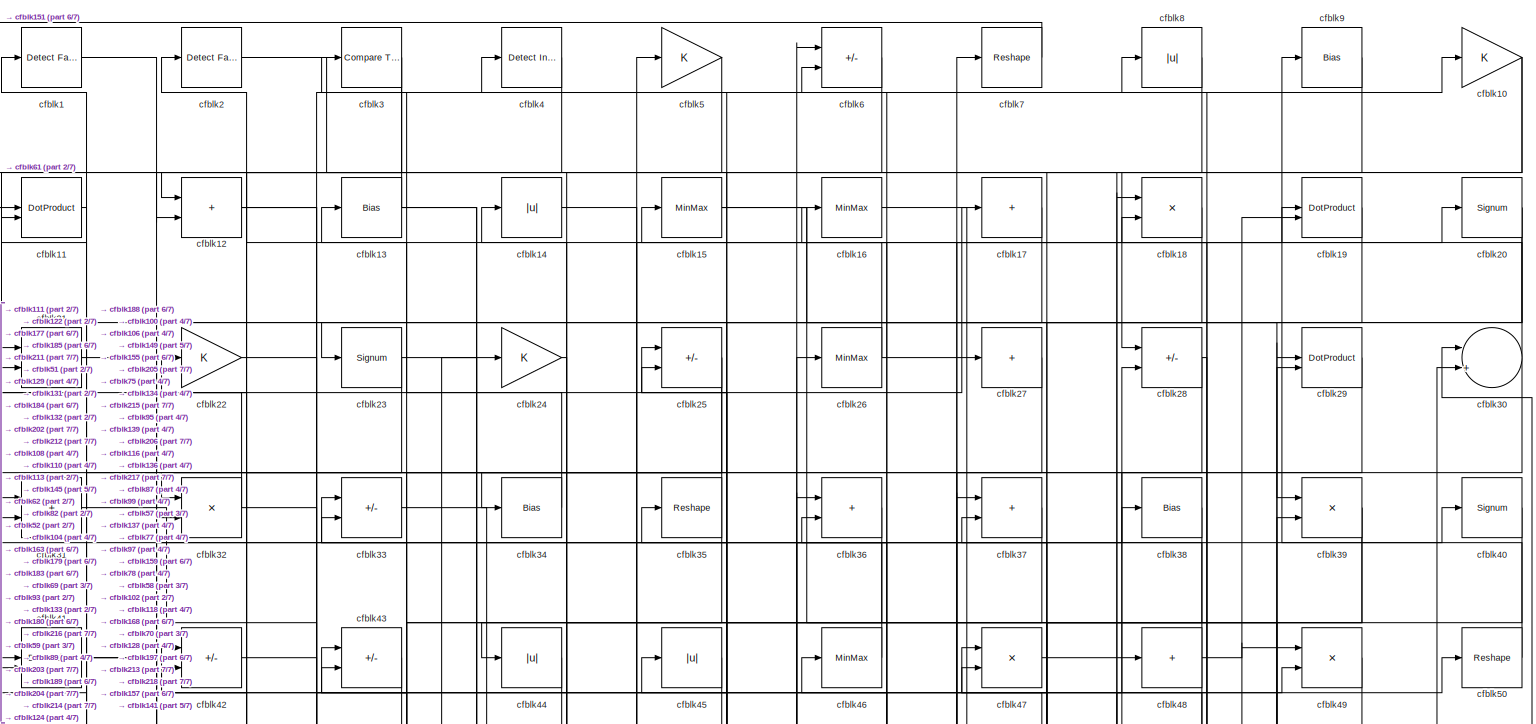
[diagram: root canvas - part 1/7, full width, top band]
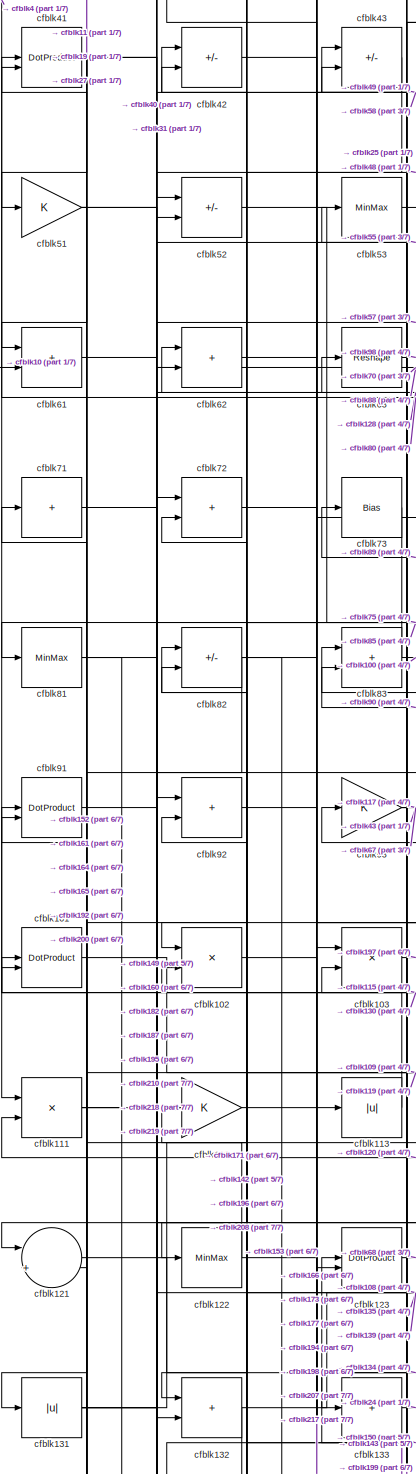
[diagram: root canvas - part 2/7, middle left region]
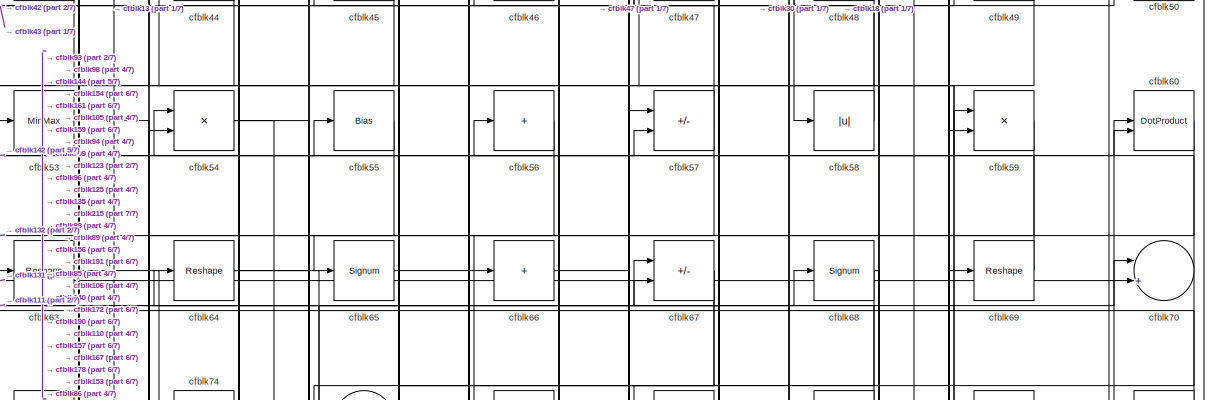
[diagram: root canvas - part 3/7, full width, top band]
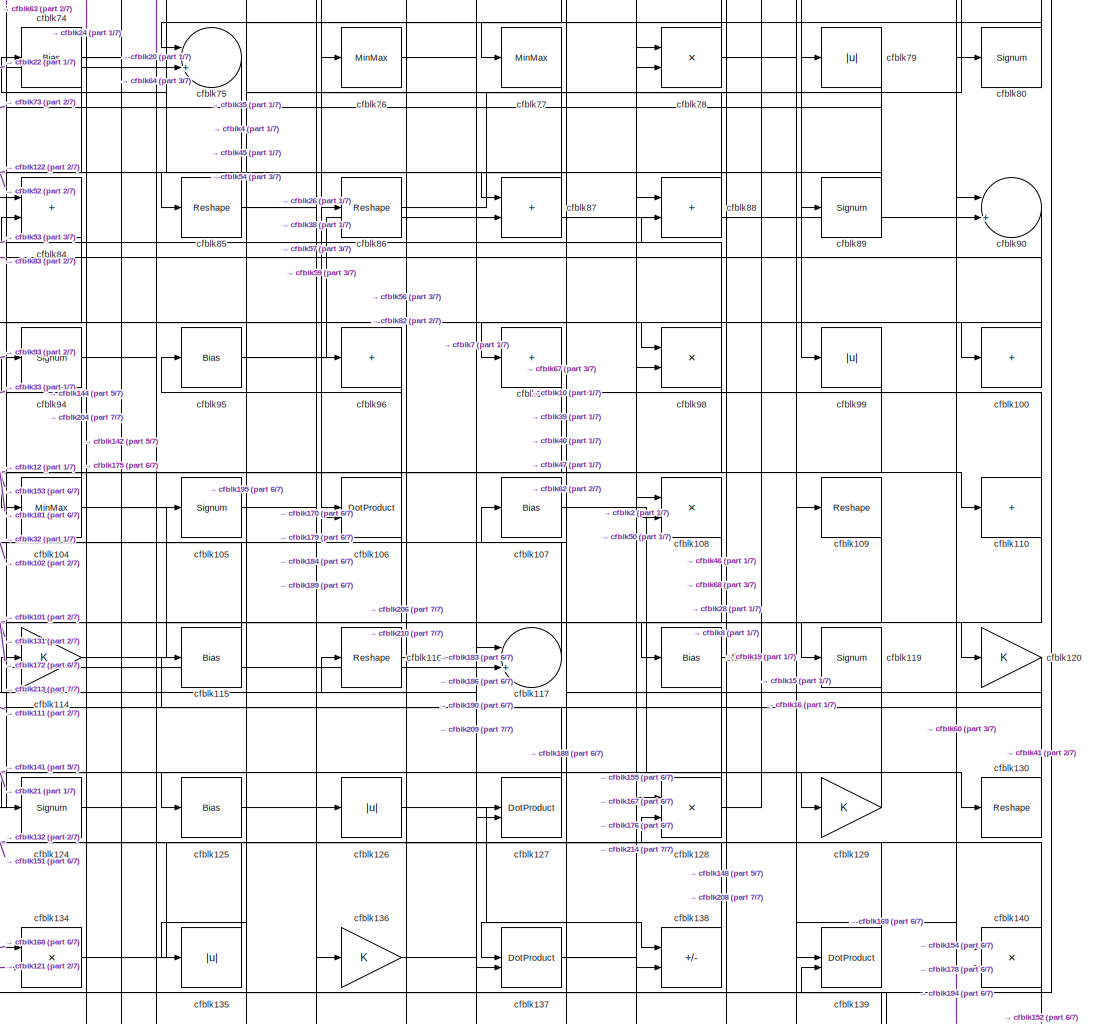
[diagram: root canvas - part 4/7, central region]
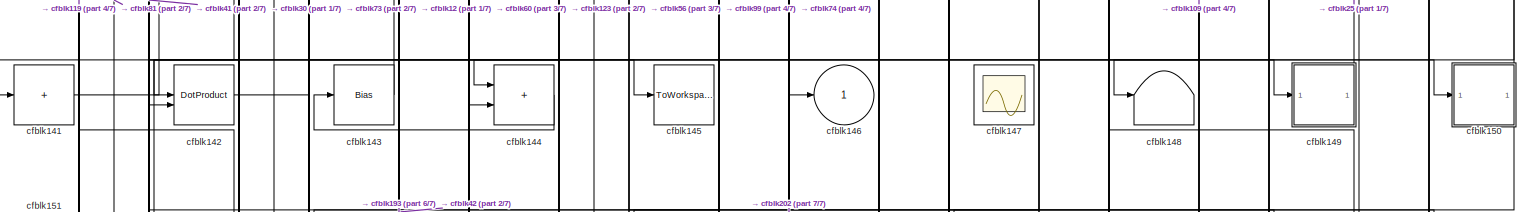
[diagram: root canvas - part 5/7, full width, middle band]
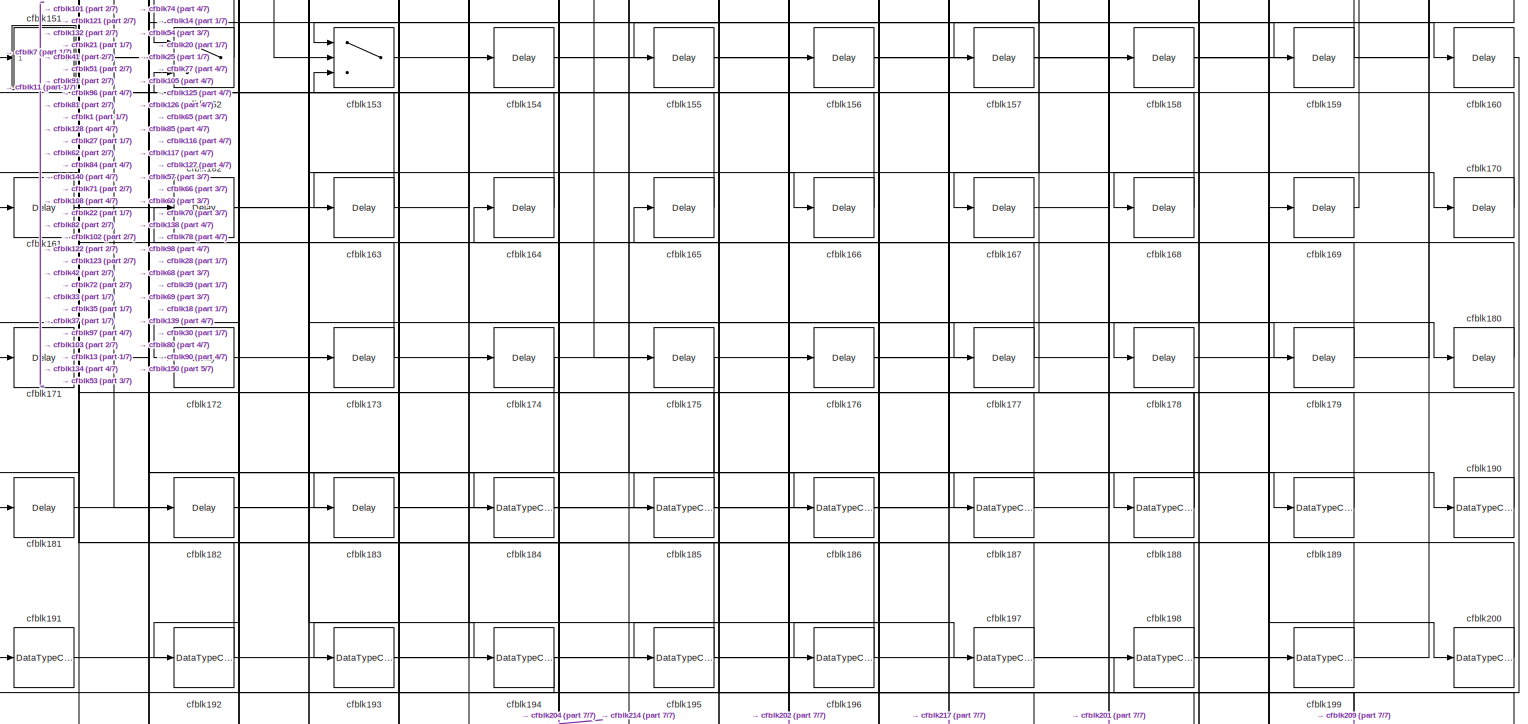
[diagram: root canvas - part 6/7, full width, bottom band]
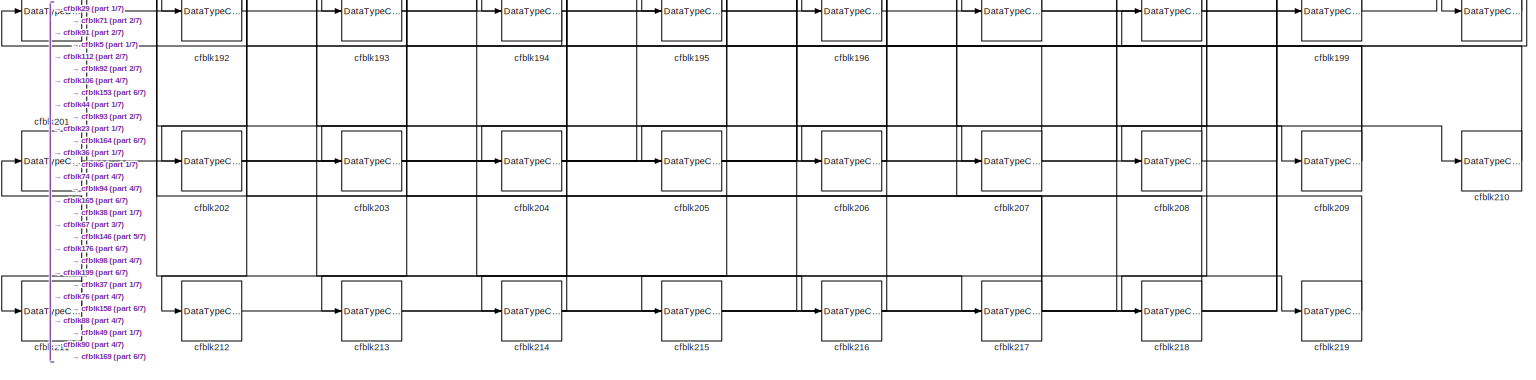
[diagram: root canvas - part 7/7, full width, bottom band]
MODEL slx_62af67a129e2
KIND model
CONFIG AbsTol = auto
CONFIG EnableMultiTasking = off
CONFIG FixedStep = auto
CONFIG MaxStep = auto
CONFIG MinStep = auto
CONFIG RelTol = 1e-3
CONFIG SampleTimeConstraint = Unconstrained
CONFIG SolverName = VariableStepAuto
CONFIG StartTime = 0.0
CONFIG StopTime = 10.0
BLOCK [Reference] cfblk1  REF=hdlsllib/Logic and Bit
Operations/Detect Fall
Negative
  SourceBlock = hdlsllib/Logic and Bit\nOperations/Detect Fall\nNegative
  SourceType = Detect Fall Negative
BLOCK [Gain] cfblk10
BLOCK [Sum] cfblk100
  IconShape = rectangular
  Inputs = +
BLOCK [DotProduct] cfblk101
  OutDataTypeStr = Inherit: Inherit via internal rule
BLOCK [Product] cfblk102
  Inputs = */
  RndMeth = Zero
  SaturateOnIntegerOverflow = on
BLOCK [Product] cfblk103
  Inputs = */
  RndMeth = Zero
  SaturateOnIntegerOverflow = on
BLOCK [MinMax] cfblk104
BLOCK [Signum] cfblk105
BLOCK [DotProduct] cfblk106
  OutDataTypeStr = Inherit: Inherit via internal rule
BLOCK [Bias] cfblk107
  Bias = 0.0
  SaturateOnIntegerOverflow = off
BLOCK [Product] cfblk108
  Inputs = */
  RndMeth = Zero
  SaturateOnIntegerOverflow = on
BLOCK [Reshape] cfblk109
BLOCK [DotProduct] cfblk11
  OutDataTypeStr = Inherit: Inherit via internal rule
BLOCK [Sum] cfblk110
  IconShape = rectangular
  Inputs = +
BLOCK [Product] cfblk111
  Inputs = */
  RndMeth = Zero
  SaturateOnIntegerOverflow = on
BLOCK [Gain] cfblk112
BLOCK [Abs] cfblk113
  SaturateOnIntegerOverflow = off
BLOCK [Gain] cfblk114
BLOCK [Bias] cfblk115
  Bias = 0.0
  SaturateOnIntegerOverflow = off
BLOCK [Reshape] cfblk116
BLOCK [Sum] cfblk117
  Inputs = |++
BLOCK [Bias] cfblk118
  Bias = 0.0
  SaturateOnIntegerOverflow = off
BLOCK [Signum] cfblk119
BLOCK [Sum] cfblk12
  IconShape = rectangular
BLOCK [Gain] cfblk120
BLOCK [Sum] cfblk121
  Inputs = |++
BLOCK [MinMax] cfblk122
BLOCK [DotProduct] cfblk123
  OutDataTypeStr = Inherit: Inherit via internal rule
BLOCK [Signum] cfblk124
BLOCK [Bias] cfblk125
  Bias = 0.0
  SaturateOnIntegerOverflow = off
BLOCK [Abs] cfblk126
  SaturateOnIntegerOverflow = off
BLOCK [DotProduct] cfblk127
  OutDataTypeStr = Inherit: Inherit via internal rule
BLOCK [Product] cfblk128
  Inputs = */
  RndMeth = Zero
  SaturateOnIntegerOverflow = on
BLOCK [Gain] cfblk129
BLOCK [Bias] cfblk13
  Bias = 0.0
  SaturateOnIntegerOverflow = off
BLOCK [Reshape] cfblk130
BLOCK [Abs] cfblk131
  SaturateOnIntegerOverflow = off
BLOCK [Sum] cfblk132
  IconShape = rectangular
BLOCK [Sum] cfblk133
  IconShape = rectangular
  Inputs = +
BLOCK [Product] cfblk134
  Inputs = */
  RndMeth = Zero
  SaturateOnIntegerOverflow = on
BLOCK [Abs] cfblk135
  SaturateOnIntegerOverflow = off
BLOCK [Gain] cfblk136
BLOCK [DotProduct] cfblk137
  OutDataTypeStr = Inherit: Inherit via internal rule
BLOCK [Sum] cfblk138
  IconShape = rectangular
  Inputs = +-
BLOCK [DotProduct] cfblk139
  OutDataTypeStr = Inherit: Inherit via internal rule
BLOCK [Abs] cfblk14
  SaturateOnIntegerOverflow = off
BLOCK [Product] cfblk140
  Inputs = */
  RndMeth = Zero
  SaturateOnIntegerOverflow = on
BLOCK [Sum] cfblk141
  IconShape = rectangular
  Inputs = +
BLOCK [DotProduct] cfblk142
  OutDataTypeStr = Inherit: Inherit via internal rule
BLOCK [Bias] cfblk143
  Bias = 0.0
  SaturateOnIntegerOverflow = off
BLOCK [Sum] cfblk144
  IconShape = rectangular
BLOCK [ToWorkspace] cfblk145
  MaxDataPoints = inf
  SampleTime = -1
  SaveFormat = Timeseries
  VariableName = simout
BLOCK [Outport] cfblk146
  VectorParamsAs1DForOutWhenUnconnected = off
BLOCK [Scope] cfblk147
  Floating = on
  NumInputPorts = 1
  ScopeSpecificationString = Simulink.scopes.TimeScopeBlockCfg('CurrentConfiguration', extmgr.ConfigurationSet(extmgr.Configuration('Core','General UI',true,'FigureColor',[0.156862745098039 0.156862745098039 0.156862745098039]),extmgr.Configuration('Core','Source UI',true),extmgr.Configuration('Sources','WiredSimulink',true,'DataLoggingVariableName','ScopeData1','DataLoggingSaveFormat','StructureWithTime','DataLoggingLimitDat...<+2713ch>
BLOCK [Terminator] cfblk148
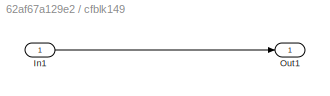
BLOCK [SubSystem] cfblk149
  LibrarySourceBlock = hdlsllib/Ports &\nSubsystems/Subsystem
BLOCK [Inport] cfblk149/In1
BLOCK [Outport] cfblk149/Out1
BLOCK [MinMax] cfblk15
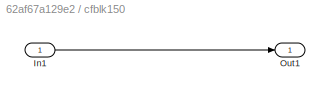
BLOCK [SubSystem] cfblk150
  LibrarySourceBlock = hdlsllib/Ports &\nSubsystems/Subsystem
BLOCK [Inport] cfblk150/In1
BLOCK [Outport] cfblk150/Out1
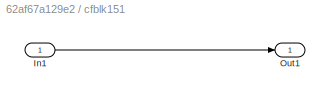
BLOCK [SubSystem] cfblk151
  LibrarySourceBlock = hdlsllib/Ports &\nSubsystems/Subsystem
BLOCK [Inport] cfblk151/In1
BLOCK [Outport] cfblk151/Out1
BLOCK [Switch] cfblk152
  InputSameDT = off
  SaturateOnIntegerOverflow = off
BLOCK [Switch] cfblk153
  InputSameDT = off
  SaturateOnIntegerOverflow = off
BLOCK [Delay] cfblk154
  InputPortMap = u0
  SampleTime = 1
BLOCK [Delay] cfblk155
  InputPortMap = u0
  SampleTime = 1
BLOCK [Delay] cfblk156
  InputPortMap = u0
  SampleTime = 1
BLOCK [Delay] cfblk157
  InputPortMap = u0
  SampleTime = 1
BLOCK [Delay] cfblk158
  InputPortMap = u0
  SampleTime = 1
BLOCK [Delay] cfblk159
  InputPortMap = u0
  SampleTime = 1
BLOCK [MinMax] cfblk16
BLOCK [Delay] cfblk160
  InputPortMap = u0
  SampleTime = 1
BLOCK [Delay] cfblk161
  InputPortMap = u0
  SampleTime = 1
BLOCK [Delay] cfblk162
  InputPortMap = u0
  SampleTime = 1
BLOCK [Delay] cfblk163
  InputPortMap = u0
  SampleTime = 1
BLOCK [Delay] cfblk164
  InputPortMap = u0
  SampleTime = 1
BLOCK [Delay] cfblk165
  InputPortMap = u0
  SampleTime = 1
BLOCK [Delay] cfblk166
  InputPortMap = u0
  SampleTime = 1
BLOCK [Delay] cfblk167
  InputPortMap = u0
  SampleTime = 1
BLOCK [Delay] cfblk168
  InputPortMap = u0
  SampleTime = 1
BLOCK [Delay] cfblk169
  InputPortMap = u0
  SampleTime = 1
BLOCK [Sum] cfblk17
  IconShape = rectangular
  Inputs = +
BLOCK [Delay] cfblk170
  InputPortMap = u0
  SampleTime = 1
BLOCK [Delay] cfblk171
  InputPortMap = u0
  SampleTime = 1
BLOCK [Delay] cfblk172
  InputPortMap = u0
  SampleTime = 1
BLOCK [Delay] cfblk173
  InputPortMap = u0
  SampleTime = 1
BLOCK [Delay] cfblk174
  InputPortMap = u0
  SampleTime = 1
BLOCK [Delay] cfblk175
  InputPortMap = u0
  SampleTime = 1
BLOCK [Delay] cfblk176
  InputPortMap = u0
  SampleTime = 1
BLOCK [Delay] cfblk177
  InputPortMap = u0
  SampleTime = 1
BLOCK [Delay] cfblk178
  InputPortMap = u0
  SampleTime = 1
BLOCK [Delay] cfblk179
  InputPortMap = u0
  SampleTime = 1
BLOCK [Product] cfblk18
  Inputs = */
  RndMeth = Zero
  SaturateOnIntegerOverflow = on
BLOCK [Delay] cfblk180
  InputPortMap = u0
  SampleTime = 1
BLOCK [Delay] cfblk181
  InputPortMap = u0
  SampleTime = 1
BLOCK [Delay] cfblk182
  InputPortMap = u0
  SampleTime = 1
BLOCK [Delay] cfblk183
  InputPortMap = u0
  SampleTime = 1
BLOCK [DataTypeConversion] cfblk184
  OutDataTypeStr = uint8
  RndMeth = Floor
  SaturateOnIntegerOverflow = off
BLOCK [DataTypeConversion] cfblk185
  OutDataTypeStr = uint8
  RndMeth = Floor
  SaturateOnIntegerOverflow = off
BLOCK [DataTypeConversion] cfblk186
  OutDataTypeStr = uint8
  RndMeth = Floor
  SaturateOnIntegerOverflow = off
BLOCK [DataTypeConversion] cfblk187
  OutDataTypeStr = uint8
  RndMeth = Floor
  SaturateOnIntegerOverflow = off
BLOCK [DataTypeConversion] cfblk188
  RndMeth = Floor
  SaturateOnIntegerOverflow = off
BLOCK [DataTypeConversion] cfblk189
  OutDataTypeStr = uint8
  RndMeth = Floor
  SaturateOnIntegerOverflow = off
BLOCK [DotProduct] cfblk19
  OutDataTypeStr = Inherit: Inherit via internal rule
BLOCK [DataTypeConversion] cfblk190
  OutDataTypeStr = uint8
  RndMeth = Floor
  SaturateOnIntegerOverflow = off
BLOCK [DataTypeConversion] cfblk191
  OutDataTypeStr = uint8
  RndMeth = Floor
  SaturateOnIntegerOverflow = off
BLOCK [DataTypeConversion] cfblk192
  OutDataTypeStr = uint8
  RndMeth = Floor
  SaturateOnIntegerOverflow = off
BLOCK [DataTypeConversion] cfblk193
  OutDataTypeStr = uint8
  RndMeth = Floor
  SaturateOnIntegerOverflow = off
BLOCK [DataTypeConversion] cfblk194
  RndMeth = Floor
  SaturateOnIntegerOverflow = off
BLOCK [DataTypeConversion] cfblk195
  OutDataTypeStr = uint8
  RndMeth = Floor
  SaturateOnIntegerOverflow = off
BLOCK [DataTypeConversion] cfblk196
  OutDataTypeStr = uint8
  RndMeth = Floor
  SaturateOnIntegerOverflow = off
BLOCK [DataTypeConversion] cfblk197
  RndMeth = Floor
  SaturateOnIntegerOverflow = off
BLOCK [DataTypeConversion] cfblk198
  OutDataTypeStr = uint8
  RndMeth = Floor
  SaturateOnIntegerOverflow = off
BLOCK [DataTypeConversion] cfblk199
  OutDataTypeStr = uint8
  RndMeth = Floor
  SaturateOnIntegerOverflow = off
BLOCK [Reference] cfblk2  REF=hdlsllib/Logic and Bit
Operations/Detect Fall
Nonpositive
  SourceBlock = hdlsllib/Logic and Bit\nOperations/Detect Fall\nNonpositive
  SourceType = Detect Fall Nonpositive
BLOCK [Signum] cfblk20
BLOCK [DataTypeConversion] cfblk200
  OutDataTypeStr = uint8
  RndMeth = Floor
  SaturateOnIntegerOverflow = off
BLOCK [DataTypeConversion] cfblk201
  OutDataTypeStr = uint8
  RndMeth = Floor
  SaturateOnIntegerOverflow = off
BLOCK [DataTypeConversion] cfblk202
  RndMeth = Floor
  SaturateOnIntegerOverflow = off
BLOCK [DataTypeConversion] cfblk203
  OutDataTypeStr = uint8
  RndMeth = Floor
  SaturateOnIntegerOverflow = off
BLOCK [DataTypeConversion] cfblk204
  RndMeth = Floor
  SaturateOnIntegerOverflow = off
BLOCK [DataTypeConversion] cfblk205
  OutDataTypeStr = uint8
  RndMeth = Floor
  SaturateOnIntegerOverflow = off
BLOCK [DataTypeConversion] cfblk206
  OutDataTypeStr = uint8
  RndMeth = Floor
  SaturateOnIntegerOverflow = off
BLOCK [DataTypeConversion] cfblk207
  OutDataTypeStr = uint8
  RndMeth = Floor
  SaturateOnIntegerOverflow = off
BLOCK [DataTypeConversion] cfblk208
  OutDataTypeStr = uint8
  RndMeth = Floor
  SaturateOnIntegerOverflow = off
BLOCK [DataTypeConversion] cfblk209
  RndMeth = Floor
  SaturateOnIntegerOverflow = off
BLOCK [Sum] cfblk21
  IconShape = rectangular
BLOCK [DataTypeConversion] cfblk210
  OutDataTypeStr = uint8
  RndMeth = Floor
  SaturateOnIntegerOverflow = off
BLOCK [DataTypeConversion] cfblk211
  OutDataTypeStr = uint8
  RndMeth = Floor
  SaturateOnIntegerOverflow = off
BLOCK [DataTypeConversion] cfblk212
  OutDataTypeStr = uint8
  RndMeth = Floor
  SaturateOnIntegerOverflow = off
BLOCK [DataTypeConversion] cfblk213
  OutDataTypeStr = uint8
  RndMeth = Floor
  SaturateOnIntegerOverflow = off
BLOCK [DataTypeConversion] cfblk214
  RndMeth = Floor
  SaturateOnIntegerOverflow = off
BLOCK [DataTypeConversion] cfblk215
  OutDataTypeStr = uint8
  RndMeth = Floor
  SaturateOnIntegerOverflow = off
BLOCK [DataTypeConversion] cfblk216
  OutDataTypeStr = uint8
  RndMeth = Floor
  SaturateOnIntegerOverflow = off
BLOCK [DataTypeConversion] cfblk217
  RndMeth = Floor
  SaturateOnIntegerOverflow = off
BLOCK [DataTypeConversion] cfblk218
  OutDataTypeStr = uint8
  RndMeth = Floor
  SaturateOnIntegerOverflow = off
BLOCK [DataTypeConversion] cfblk219
  OutDataTypeStr = uint8
  RndMeth = Floor
  SaturateOnIntegerOverflow = off
BLOCK [Gain] cfblk22
BLOCK [Signum] cfblk23
BLOCK [Gain] cfblk24
BLOCK [Sum] cfblk25
  IconShape = rectangular
  Inputs = +-
BLOCK [MinMax] cfblk26
BLOCK [Sum] cfblk27
  IconShape = rectangular
  Inputs = +
BLOCK [Sum] cfblk28
  IconShape = rectangular
  Inputs = +-
BLOCK [DotProduct] cfblk29
  OutDataTypeStr = Inherit: Inherit via internal rule
BLOCK [Reference] cfblk3  REF=hdlsllib/Logic and Bit
Operations/Compare
To Constant
  SourceBlock = hdlsllib/Logic and Bit\nOperations/Compare\nTo Constant
  SourceType = Compare To Constant
BLOCK [Sum] cfblk30
  Inputs = |++
BLOCK [Sum] cfblk31
  IconShape = rectangular
BLOCK [Product] cfblk32
  Inputs = */
  RndMeth = Zero
  SaturateOnIntegerOverflow = on
BLOCK [Sum] cfblk33
  IconShape = rectangular
  Inputs = +-
BLOCK [Bias] cfblk34
  Bias = 0.0
  SaturateOnIntegerOverflow = off
BLOCK [Reshape] cfblk35
BLOCK [Sum] cfblk36
  IconShape = rectangular
BLOCK [Sum] cfblk37
  IconShape = rectangular
BLOCK [Bias] cfblk38
  Bias = 0.0
  SaturateOnIntegerOverflow = off
BLOCK [Product] cfblk39
  Inputs = */
  RndMeth = Zero
  SaturateOnIntegerOverflow = on
BLOCK [Reference] cfblk4  REF=simulink/Logic and Bit
Operations/Detect
Increase
  LibrarySourceBlock = hdlsllib/Logic and Bit\nOperations/Detect\nIncrease
  SourceBlock = simulink/Logic and Bit\nOperations/Detect\nIncrease
  SourceType = Detect Increase
BLOCK [Signum] cfblk40
BLOCK [DotProduct] cfblk41
  OutDataTypeStr = Inherit: Inherit via internal rule
BLOCK [Sum] cfblk42
  IconShape = rectangular
  Inputs = +-
BLOCK [Sum] cfblk43
  IconShape = rectangular
  Inputs = +-
BLOCK [Abs] cfblk44
  SaturateOnIntegerOverflow = off
BLOCK [Abs] cfblk45
  SaturateOnIntegerOverflow = off
BLOCK [MinMax] cfblk46
BLOCK [Product] cfblk47
  Inputs = */
  RndMeth = Zero
  SaturateOnIntegerOverflow = on
BLOCK [Sum] cfblk48
  IconShape = rectangular
  Inputs = +
BLOCK [Product] cfblk49
  Inputs = */
  RndMeth = Zero
  SaturateOnIntegerOverflow = on
BLOCK [Gain] cfblk5
BLOCK [Reshape] cfblk50
BLOCK [Gain] cfblk51
BLOCK [Sum] cfblk52
  IconShape = rectangular
  Inputs = +-
BLOCK [MinMax] cfblk53
BLOCK [Product] cfblk54
  Inputs = */
  RndMeth = Zero
  SaturateOnIntegerOverflow = on
BLOCK [Bias] cfblk55
  Bias = 0.0
  SaturateOnIntegerOverflow = off
BLOCK [Sum] cfblk56
  IconShape = rectangular
  Inputs = +
BLOCK [Sum] cfblk57
  IconShape = rectangular
  Inputs = +-
BLOCK [Abs] cfblk58
  SaturateOnIntegerOverflow = off
BLOCK [Product] cfblk59
  Inputs = */
  RndMeth = Zero
  SaturateOnIntegerOverflow = on
BLOCK [Sum] cfblk6
  IconShape = rectangular
  Inputs = +-
BLOCK [DotProduct] cfblk60
  OutDataTypeStr = Inherit: Inherit via internal rule
BLOCK [Sum] cfblk61
  IconShape = rectangular
BLOCK [Sum] cfblk62
  IconShape = rectangular
BLOCK [Reshape] cfblk63
BLOCK [Reshape] cfblk64
BLOCK [Signum] cfblk65
BLOCK [Sum] cfblk66
  IconShape = rectangular
  Inputs = +
BLOCK [Sum] cfblk67
  IconShape = rectangular
  Inputs = +-
BLOCK [Signum] cfblk68
BLOCK [Reshape] cfblk69
BLOCK [Reshape] cfblk7
BLOCK [Sum] cfblk70
  Inputs = |++
BLOCK [Sum] cfblk71
  IconShape = rectangular
  Inputs = +
BLOCK [Sum] cfblk72
  IconShape = rectangular
BLOCK [Bias] cfblk73
  Bias = 0.0
  SaturateOnIntegerOverflow = off
BLOCK [Bias] cfblk74
  Bias = 0.0
  SaturateOnIntegerOverflow = off
BLOCK [Sum] cfblk75
  Inputs = |++
BLOCK [MinMax] cfblk76
BLOCK [MinMax] cfblk77
BLOCK [Product] cfblk78
  Inputs = */
  RndMeth = Zero
  SaturateOnIntegerOverflow = on
BLOCK [Abs] cfblk79
  SaturateOnIntegerOverflow = off
BLOCK [Abs] cfblk8
  SaturateOnIntegerOverflow = off
BLOCK [Signum] cfblk80
BLOCK [MinMax] cfblk81
BLOCK [Sum] cfblk82
  IconShape = rectangular
  Inputs = +-
BLOCK [Sum] cfblk83
  IconShape = rectangular
BLOCK [Sum] cfblk84
  IconShape = rectangular
BLOCK [Reshape] cfblk85
BLOCK [Reshape] cfblk86
BLOCK [Sum] cfblk87
  IconShape = rectangular
BLOCK [Sum] cfblk88
  IconShape = rectangular
BLOCK [Signum] cfblk89
BLOCK [Bias] cfblk9
  Bias = 0.0
  SaturateOnIntegerOverflow = off
BLOCK [Sum] cfblk90
  Inputs = |++
BLOCK [DotProduct] cfblk91
  OutDataTypeStr = Inherit: Inherit via internal rule
BLOCK [Sum] cfblk92
  IconShape = rectangular
BLOCK [Gain] cfblk93
BLOCK [Signum] cfblk94
BLOCK [Bias] cfblk95
  Bias = 0.0
  SaturateOnIntegerOverflow = off
BLOCK [Sum] cfblk96
  IconShape = rectangular
  Inputs = +
BLOCK [Sum] cfblk97
  IconShape = rectangular
  Inputs = +
BLOCK [Product] cfblk98
  Inputs = */
  RndMeth = Zero
  SaturateOnIntegerOverflow = on
BLOCK [Abs] cfblk99
  SaturateOnIntegerOverflow = off
LINE cfblk100:1 -> cfblk35:1
LINE cfblk101:1 -> cfblk119:1
LINE cfblk102:1 -> cfblk177:1
LINE cfblk103:1 -> cfblk197:1
NET cfblk104:1 -> cfblk120:1, cfblk33:1
LINE cfblk105:1 -> cfblk189:1
NET cfblk106:1 -> cfblk213:1, cfblk45:1
LINE cfblk107:1 -> cfblk130:1
LINE cfblk108:1 -> cfblk172:1
NET cfblk109:1 -> cfblk131:1, cfblk148:1
NET cfblk10:1 -> cfblk61:2, cfblk77:1
NET cfblk110:1 -> cfblk118:1, cfblk47:2, cfblk67:2
NET cfblk111:1 -> cfblk55:1, cfblk70:1
LINE cfblk112:1 -> cfblk207:1
LINE cfblk113:1 -> cfblk91:1
LINE cfblk114:1 -> cfblk106:2
NET cfblk115:1 -> cfblk102:2, cfblk63:1
LINE cfblk116:1 -> cfblk19:1
LINE cfblk117:1 -> cfblk107:1
NET cfblk118:1 -> cfblk137:2, cfblk8:1
LINE cfblk119:1 -> cfblk141:1
LINE cfblk11:1 -> cfblk31:1
LINE cfblk120:1 -> cfblk111:2
LINE cfblk121:1 -> cfblk134:2
NET cfblk122:1 -> cfblk11:2, cfblk166:1
LINE cfblk123:1 -> cfblk68:1
LINE cfblk124:1 -> cfblk20:1
LINE cfblk125:1 -> cfblk179:1
LINE cfblk126:1 -> cfblk138:1
LINE cfblk127:1 -> cfblk84:2
NET cfblk128:1 -> cfblk19:2, cfblk62:1
LINE cfblk129:1 -> cfblk115:1
NET cfblk12:1 -> cfblk110:1, cfblk145:1
LINE cfblk130:1 -> cfblk101:1
NET cfblk131:1 -> cfblk48:1, cfblk70:2, cfblk88:2
NET cfblk132:1 -> cfblk108:1, cfblk171:1
LINE cfblk133:1 -> cfblk24:1
LINE cfblk134:1 -> cfblk26:1
LINE cfblk135:1 -> cfblk83:1
LINE cfblk136:1 -> cfblk7:1
NET cfblk137:1 -> cfblk50:1, cfblk79:1
LINE cfblk138:1 -> cfblk95:1
NET cfblk139:1 -> cfblk16:1, cfblk82:1
NET cfblk13:1 -> cfblk12:1, cfblk180:1, cfblk59:2
NET cfblk140:1 -> cfblk114:1, cfblk152:1, cfblk56:1
LINE cfblk141:1 -> cfblk30:1
LINE cfblk142:1 -> cfblk60:2
LINE cfblk143:1 -> cfblk123:1
LINE cfblk144:1 -> cfblk143:1
LINE cfblk149/In1:1 -> cfblk149/Out1:1
LINE cfblk149:1 -> cfblk25:1
LINE cfblk14:1 -> cfblk188:1
LINE cfblk150/In1:1 -> cfblk150/Out1:1
NET cfblk150:1 -> cfblk193:1, cfblk42:1
LINE cfblk151/In1:1 -> cfblk151/Out1:1
NET cfblk151:1 -> cfblk128:2, cfblk27:1
LINE cfblk152:1 -> cfblk71:1
LINE cfblk153:1 -> cfblk69:1
LINE cfblk154:1 -> cfblk90:1
LINE cfblk155:1 -> cfblk138:2
LINE cfblk156:1 -> cfblk196:1
LINE cfblk157:1 -> cfblk30:2
LINE cfblk158:1 -> cfblk200:1
LINE cfblk159:1 -> cfblk18:1
NET cfblk15:1 -> cfblk139:1, cfblk39:1
LINE cfblk160:1 -> cfblk198:1
LINE cfblk161:1 -> cfblk54:2
LINE cfblk162:1 -> cfblk186:1
LINE cfblk163:1 -> cfblk11:1
LINE cfblk164:1 -> cfblk91:2
LINE cfblk165:1 -> cfblk121:2
LINE cfblk166:1 -> cfblk152:3
LINE cfblk167:1 -> cfblk128:1
LINE cfblk168:1 -> cfblk134:1
LINE cfblk169:1 -> cfblk139:2
LINE cfblk16:1 -> cfblk99:1
LINE cfblk170:1 -> cfblk84:1
LINE cfblk171:1 -> cfblk62:2
LINE cfblk172:1 -> cfblk57:1
LINE cfblk173:1 -> cfblk82:2
LINE cfblk174:1 -> cfblk192:1
LINE cfblk175:1 -> cfblk185:1
LINE cfblk176:1 -> cfblk98:2
LINE cfblk177:1 -> cfblk21:2
LINE cfblk178:1 -> cfblk140:1
LINE cfblk179:1 -> cfblk33:2
LINE cfblk17:1 -> cfblk32:2
LINE cfblk180:1 -> cfblk25:2
LINE cfblk181:1 -> cfblk78:1
LINE cfblk182:1 -> cfblk123:2
LINE cfblk183:1 -> cfblk117:1
LINE cfblk184:1 -> cfblk126:1
LINE cfblk185:1 -> cfblk1:1
LINE cfblk186:1 -> cfblk127:2
LINE cfblk187:1 -> cfblk162:1
NET cfblk188:1 -> cfblk116:1, cfblk37:2
LINE cfblk189:1 -> cfblk14:1
LINE cfblk18:1 -> cfblk23:1
LINE cfblk190:1 -> cfblk127:1
LINE cfblk191:1 -> cfblk66:1
LINE cfblk192:1 -> cfblk41:2
LINE cfblk193:1 -> cfblk174:1
NET cfblk194:1 -> cfblk191:1, cfblk80:1
LINE cfblk195:1 -> cfblk72:1
LINE cfblk196:1 -> cfblk72:2
NET cfblk197:1 -> cfblk22:1, cfblk39:2
LINE cfblk198:1 -> cfblk103:1
LINE cfblk199:1 -> cfblk103:2
LINE cfblk19:1 -> cfblk51:1
LINE cfblk1:1 -> cfblk184:1
LINE cfblk200:1 -> cfblk101:2
LINE cfblk201:1 -> cfblk158:1
NET cfblk202:1 -> cfblk146:1, cfblk169:1
LINE cfblk203:1 -> cfblk5:1
NET cfblk204:1 -> cfblk176:1, cfblk74:1
LINE cfblk205:1 -> cfblk6:1
LINE cfblk206:1 -> cfblk6:2
LINE cfblk207:1 -> cfblk93:1
LINE cfblk208:1 -> cfblk112:1
NET cfblk209:1 -> cfblk165:1, cfblk94:1
NET cfblk20:1 -> cfblk155:1, cfblk87:1
LINE cfblk210:1 -> cfblk76:1
LINE cfblk211:1 -> cfblk201:1
LINE cfblk212:1 -> cfblk29:1
LINE cfblk213:1 -> cfblk29:2
NET cfblk214:1 -> cfblk164:1, cfblk88:1
LINE cfblk215:1 -> cfblk36:1
LINE cfblk216:1 -> cfblk36:2
NET cfblk217:1 -> cfblk153:3, cfblk199:1, cfblk37:1
LINE cfblk218:1 -> cfblk92:1
LINE cfblk219:1 -> cfblk92:2
LINE cfblk21:1 -> cfblk129:1
LINE cfblk22:1 -> cfblk75:2
NET cfblk23:1 -> cfblk212:1, cfblk216:1
LINE cfblk24:1 -> cfblk104:1
NET cfblk25:1 -> cfblk132:1, cfblk133:1
NET cfblk26:1 -> cfblk17:1, cfblk2:1
LINE cfblk27:1 -> cfblk61:1
NET cfblk28:1 -> cfblk168:1, cfblk87:2
LINE cfblk29:1 -> cfblk211:1
LINE cfblk2:1 -> cfblk78:2
NET cfblk30:1 -> cfblk15:1, cfblk58:1
LINE cfblk31:1 -> cfblk113:1
NET cfblk32:1 -> cfblk108:2, cfblk21:1
LINE cfblk33:1 -> cfblk89:1
LINE cfblk34:1 -> cfblk3:1
NET cfblk35:1 -> cfblk183:1, cfblk34:1
LINE cfblk36:1 -> cfblk214:1
LINE cfblk37:1 -> cfblk163:1
LINE cfblk38:1 -> cfblk205:1
NET cfblk39:1 -> cfblk137:1, cfblk44:1
NET cfblk3:1 -> cfblk12:2, cfblk32:1
LINE cfblk40:1 -> cfblk97:1
NET cfblk41:1 -> cfblk150:1, cfblk52:1
LINE cfblk42:1 -> cfblk173:1
LINE cfblk43:1 -> cfblk52:2
LINE cfblk44:1 -> cfblk203:1
LINE cfblk45:1 -> cfblk124:1
LINE cfblk46:1 -> cfblk31:2
LINE cfblk47:1 -> cfblk28:2
NET cfblk48:1 -> cfblk102:1, cfblk13:1, cfblk49:1
LINE cfblk49:1 -> cfblk218:1
LINE cfblk4:1 -> cfblk111:1
LINE cfblk50:1 -> cfblk9:1
NET cfblk51:1 -> cfblk160:1, cfblk161:1, cfblk187:1
LINE cfblk52:1 -> cfblk85:1
LINE cfblk53:1 -> cfblk154:1
NET cfblk54:1 -> cfblk105:1, cfblk159:1
LINE cfblk55:1 -> cfblk65:1
LINE cfblk56:1 -> cfblk144:2
NET cfblk57:1 -> cfblk132:2, cfblk47:1
LINE cfblk58:1 -> cfblk42:2
LINE cfblk59:1 -> cfblk106:1
LINE cfblk5:1 -> cfblk202:1
LINE cfblk60:1 -> cfblk167:1
LINE cfblk61:1 -> cfblk40:1
LINE cfblk62:1 -> cfblk10:1
LINE cfblk63:1 -> cfblk98:1
NET cfblk64:1 -> cfblk109:1, cfblk96:1
LINE cfblk65:1 -> cfblk156:1
LINE cfblk66:1 -> cfblk190:1
NET cfblk67:1 -> cfblk125:1, cfblk215:1
NET cfblk68:1 -> cfblk135:1, cfblk178:1
LINE cfblk69:1 -> cfblk43:1
LINE cfblk6:1 -> cfblk204:1
NET cfblk70:1 -> cfblk157:1, cfblk18:2
LINE cfblk71:1 -> cfblk219:1
LINE cfblk72:1 -> cfblk194:1
LINE cfblk73:1 -> cfblk142:1
NET cfblk74:1 -> cfblk136:1, cfblk142:2, cfblk175:1
LINE cfblk75:1 -> cfblk122:1
LINE cfblk76:1 -> cfblk209:1
LINE cfblk77:1 -> cfblk195:1
NET cfblk78:1 -> cfblk140:2, cfblk46:1
LINE cfblk79:1 -> cfblk86:1
LINE cfblk7:1 -> cfblk151:1
LINE cfblk80:1 -> cfblk41:1
NET cfblk81:1 -> cfblk149:1, cfblk182:1
NET cfblk82:1 -> cfblk121:1, cfblk153:2, cfblk49:2
NET cfblk83:1 -> cfblk100:1, cfblk81:1
LINE cfblk84:1 -> cfblk152:2
NET cfblk85:1 -> cfblk170:1, cfblk57:2
LINE cfblk86:1 -> cfblk60:1
LINE cfblk87:1 -> cfblk4:1
LINE cfblk88:1 -> cfblk54:1
NET cfblk89:1 -> cfblk64:1, cfblk73:1
LINE cfblk8:1 -> cfblk75:1
NET cfblk90:1 -> cfblk208:1, cfblk83:2
LINE cfblk91:1 -> cfblk210:1
LINE cfblk92:1 -> cfblk217:1
NET cfblk93:1 -> cfblk117:2, cfblk43:2, cfblk67:1
LINE cfblk94:1 -> cfblk59:1
NET cfblk95:1 -> cfblk38:1, cfblk90:2
LINE cfblk96:1 -> cfblk181:1
LINE cfblk97:1 -> cfblk153:1
NET cfblk98:1 -> cfblk206:1, cfblk53:1
LINE cfblk99:1 -> cfblk144:1
LINE cfblk9:1 -> cfblk28:1
note: NET lines group one-source signal fan-out (src -> all destinations, sorted); 1:1 wires keep LINE
